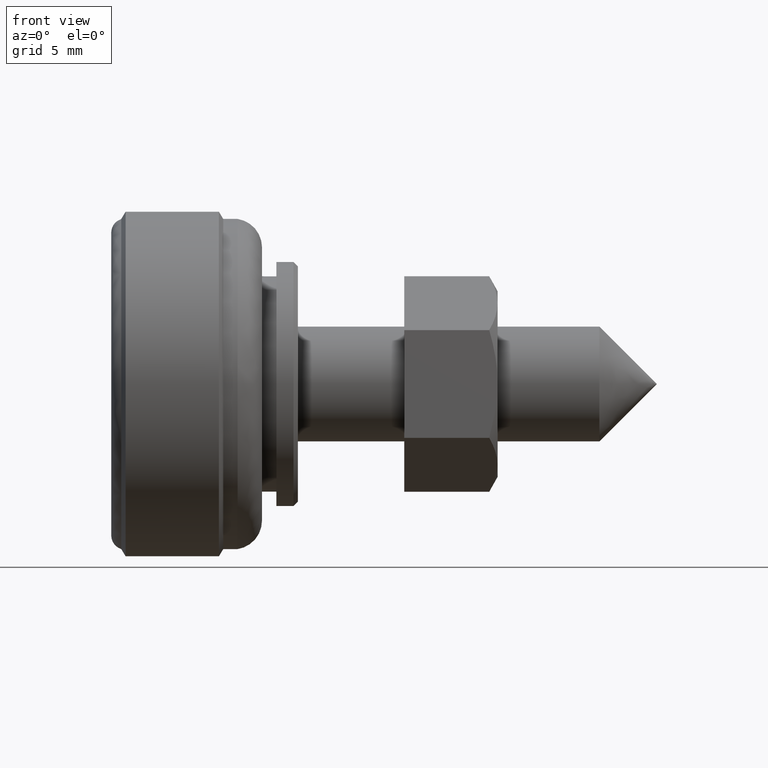
[diagram: clean part render]
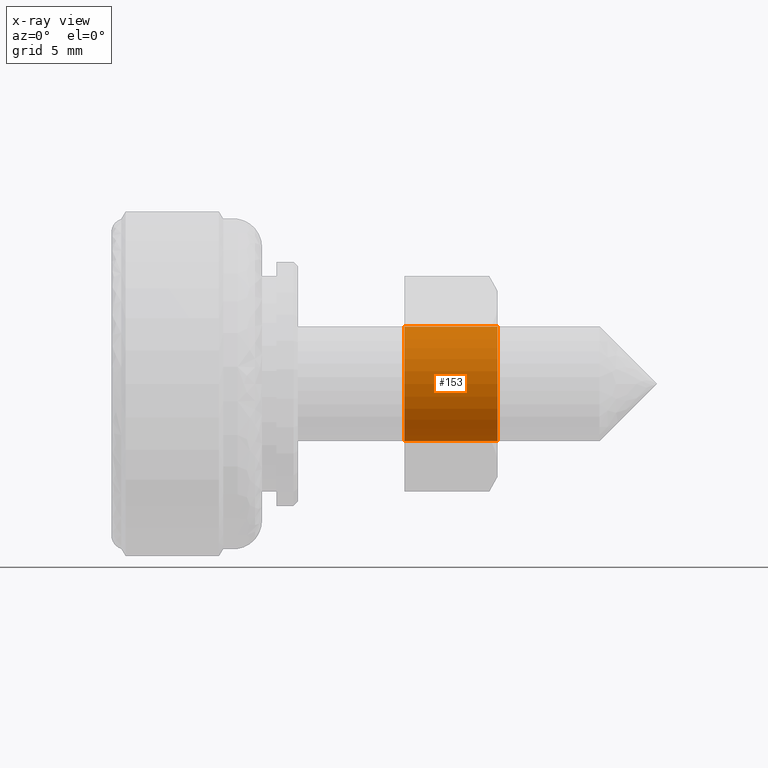
[diagram: x-ray — body ghosted, one internal face saturated and labeled with its STEP entity id]
A machine part, front view, then the same camera in x-ray: the body is ghosted and one INTERNAL B-rep face — a face not visible from any outside direction — is saturated and labeled: STEP entity #153.
In plain terms, the highlighted cylindrical surface (partial cylindrical patch) has radius 4 mm, axis along (-1, 0, 0).
Its self-contained STEP definition (entity closure, byte-faithful):
#153=ADVANCED_FACE('',(#570),#569,.F.);
#569=CYLINDRICAL_SURFACE('',#936,4.00000000000E+00);
#570=FACE_OUTER_BOUND('',#937,.T.);
#933=CARTESIAN_POINT('',(0.00000000000E+00,0.00000000000E+00,0.00000000000E+00));
#934=DIRECTION('',(-0.00000000000E+00,0.00000000000E+00,-1.00000000000E+00));
#935=DIRECTION('',(-1.00000000000E+00,-0.00000000000E+00,-0.00000000000E+00));
#936=AXIS2_PLACEMENT_3D('',#933,#934,#935);
#937=EDGE_LOOP('',(#1108,#1109,#1110,#1111,#1112,#1113));
#1108=ORIENTED_EDGE('',*,*,#1197,.F.);
#1109=ORIENTED_EDGE('',*,*,#1199,.F.);
#1110=ORIENTED_EDGE('',*,*,#1200,.F.);
#1111=ORIENTED_EDGE('',*,*,#1178,.T.);
#1112=ORIENTED_EDGE('',*,*,#1180,.T.);
#1113=ORIENTED_EDGE('',*,*,#1201,.T.);
#1178=EDGE_CURVE('',#1625,#1626,#1627,.T.);
#1180=EDGE_CURVE('',#1626,#1633,#1640,.T.);
#1197=EDGE_CURVE('',#1750,#1751,#1752,.T.);
#1199=EDGE_CURVE('',#1758,#1750,#1765,.T.);
#1200=EDGE_CURVE('',#1625,#1758,#1771,.T.);
#1201=EDGE_CURVE('',#1633,#1751,#1777,.T.);
#1625=VERTEX_POINT('',#2063);
#1626=VERTEX_POINT('',#2064);
#1627=CIRCLE('',#2068,4.00000000000E+00);
#1633=VERTEX_POINT('',#2069);
#1640=CIRCLE('',#2077,4.00000000000E+00);
#1750=VERTEX_POINT('',#2148);
#1751=VERTEX_POINT('',#2149);
#1752=CIRCLE('',#2153,4.00000000000E+00);
#1758=VERTEX_POINT('',#2154);
#1765=CIRCLE('',#2162,4.00000000000E+00);
#1771=(BOUNDED_CURVE() B_SPLINE_CURVE(1,(#2163,#2164),.UNSPECIFIED.,.F.,.F.) B_SPLINE_CURVE_WITH_KNOTS((2,2),(8.33333347523E-02,9.16666664312E-01),.UNSPECIFIED.) CURVE() GEOMETRIC_REPRESENTATION_ITEM() RATIONAL_B_SPLINE_CURVE((1.00000000000E+00,1.00000000000E+00)) REPRESENTATION_ITEM('') );
#1777=(BOUNDED_CURVE() B_SPLINE_CURVE(1,(#2165,#2166),.UNSPECIFIED.,.F.,.F.) B_SPLINE_CURVE_WITH_KNOTS((2,2),(8.33333333333E-02,9.16666666667E-01),.UNSPECIFIED.) CURVE() GEOMETRIC_REPRESENTATION_ITEM() RATIONAL_B_SPLINE_CURVE((7.50000000000E-01,7.50000000000E-01)) REPRESENTATION_ITEM('') );
#2063=CARTESIAN_POINT('',(-4.00000000000E+00,-1.59427319057E-11,6.50000000000E+00));
#2064=CARTESIAN_POINT('',(0.00000000000E+00,-4.00000000000E+00,6.50000000000E+00));
#2065=CARTESIAN_POINT('',(0.00000000000E+00,0.00000000000E+00,6.50000000000E+00));
#2066=DIRECTION('',(0.00000000000E+00,0.00000000000E+00,1.00000000000E+00));
#2067=DIRECTION('',(-1.22460635382E-16,-1.00000000000E+00,0.00000000000E+00));
#2068=AXIS2_PLACEMENT_3D('',#2065,#2066,#2067);
#2069=CARTESIAN_POINT('',(3.99999997846E+00,4.15123018774E-04,6.50000000000E+00));
#2074=CARTESIAN_POINT('',(0.00000000000E+00,0.00000000000E+00,6.50000000000E+00));
#2075=DIRECTION('',(0.00000000000E+00,0.00000000000E+00,1.00000000000E+00));
#2076=DIRECTION('',(-1.22460635382E-16,-1.00000000000E+00,0.00000000000E+00));
#2077=AXIS2_PLACEMENT_3D('',#2074,#2075,#2076);
#2148=CARTESIAN_POINT('',(0.00000000000E+00,-4.00000000000E+00,0.00000000000E+00));
#2149=CARTESIAN_POINT('',(3.99999997846E+00,4.15123018774E-04,0.00000000000E+00));
#2150=CARTESIAN_POINT('',(0.00000000000E+00,0.00000000000E+00,0.00000000000E+00));
#2151=DIRECTION('',(0.00000000000E+00,0.00000000000E+00,1.00000000000E+00));
#2152=DIRECTION('',(-1.22460635382E-16,-1.00000000000E+00,0.00000000000E+00));
#2153=AXIS2_PLACEMENT_3D('',#2150,#2151,#2152);
#2154=CARTESIAN_POINT('',(-4.00000000000E+00,-1.59427319057E-11,0.00000000000E+00));
#2159=CARTESIAN_POINT('',(0.00000000000E+00,0.00000000000E+00,0.00000000000E+00));
#2160=DIRECTION('',(0.00000000000E+00,0.00000000000E+00,1.00000000000E+00));
#2161=DIRECTION('',(-1.22460635382E-16,-1.00000000000E+00,0.00000000000E+00));
#2162=AXIS2_PLACEMENT_3D('',#2159,#2160,#2161);
#2163=CARTESIAN_POINT('',(-4.00000000000E+00,0.00000000000E+00,6.49999998893E+00));
#2164=CARTESIAN_POINT('',(-4.00000000000E+00,0.00000000000E+00,1.83631886364E-08));
#2165=CARTESIAN_POINT('',(4.00000000000E+00,-1.48029736617E-16,6.50000000000E+00));
#2166=CARTESIAN_POINT('',(4.00000000000E+00,-1.48029736617E-16,5.92118946467E-16));